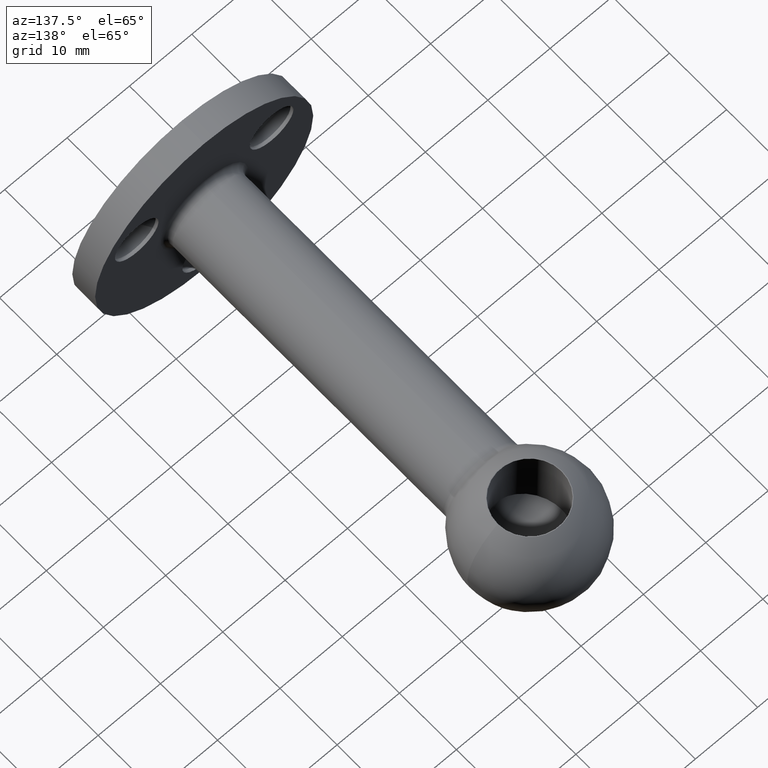
[diagram: clean part render]
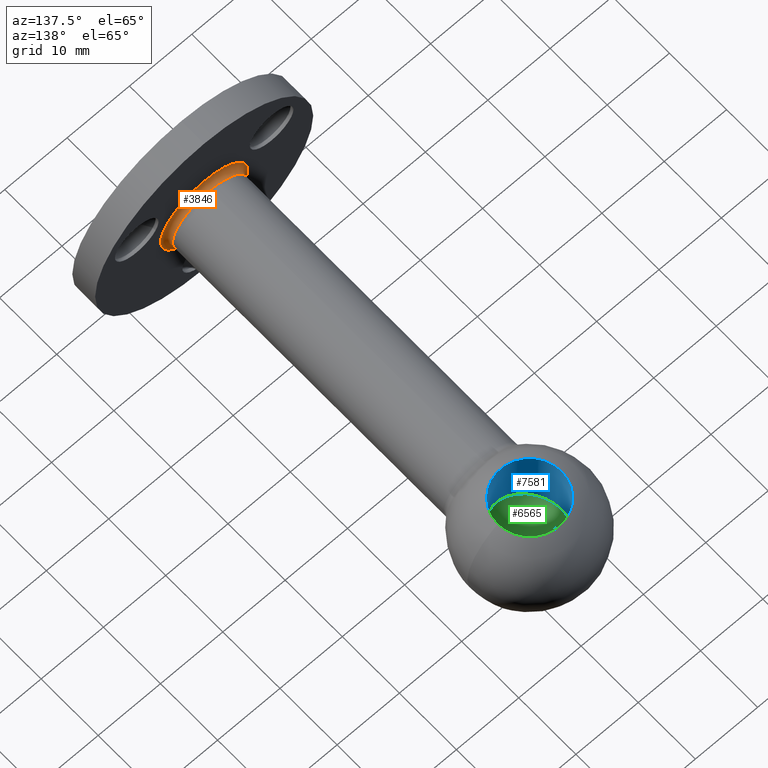
[diagram: same view with three faces highlighted in distinct colors, each labeled with its STEP entity id]
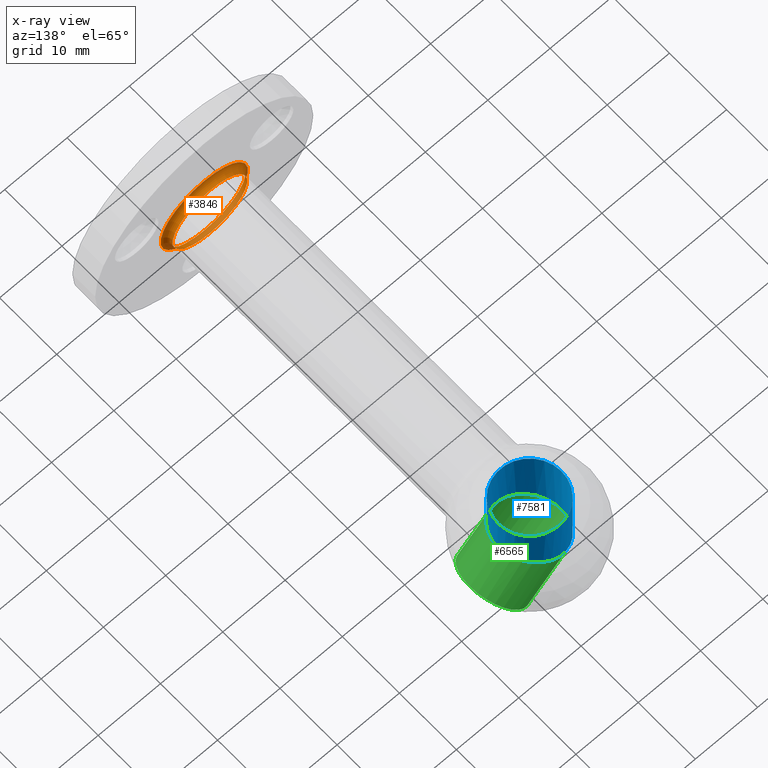
[diagram: x-ray of the same camera — body ghosted, the three highlighted faces saturated]
A machine part, auxiliary view with three faces highlighted in distinct colors.
The next image is the same camera in x-ray (body ghosted, the three faces saturated) — at least one of them is partly hidden behind the body in this view.
Their STEP definitions:

[orange] entity #3846 — the highlighted toroidal blend (fillet) surface has major radius 7 mm and minor (blend) radius 1 mm.
#637 = EDGE_LOOP ( 'NONE', ( #2044 ) ) ;
#654 = DIRECTION ( 'NONE',  ( 0.000000000000000000, 1.000000000000000000, 0.000000000000000000 ) ) ;
#808 = CARTESIAN_POINT ( 'NONE',  ( 0.000000000000000000, 5.000000000000000000, 0.000000000000000000 ) ) ;
#873 = CIRCLE ( 'NONE', #9180, 6.000000000000001776 ) ;
#969 = ORIENTED_EDGE ( 'NONE', *, *, #11612, .F. ) ;
#1600 = DIRECTION ( 'NONE',  ( 0.000000000000000000, 0.000000000000000000, 1.000000000000000000 ) ) ;
#2044 = ORIENTED_EDGE ( 'NONE', *, *, #10140, .F. ) ;
#2308 = CARTESIAN_POINT ( 'NONE',  ( 0.000000000000000000, 4.000000000000000000, 0.000000000000000000 ) ) ;
#2475 = CARTESIAN_POINT ( 'NONE',  ( 0.000000000000000000, 5.000000000000000000, 0.000000000000000000 ) ) ;
#2739 = DIRECTION ( 'NONE',  ( 0.000000000000000000, 0.000000000000000000, 1.000000000000000000 ) ) ;
#3308 = EDGE_LOOP ( 'NONE', ( #969 ) ) ;
#3311 = CARTESIAN_POINT ( 'NONE',  ( 0.000000000000000000, 4.000000000000000000, 7.000000000000001776 ) ) ;
#3846 = ADVANCED_FACE ( 'NONE', ( #12342, #11732 ), #9480, .F. ) ;
#4138 = DIRECTION ( 'NONE',  ( -0.000000000000000000, -1.000000000000000000, -0.000000000000000000 ) ) ;
#4294 = VERTEX_POINT ( 'NONE', #8225 ) ;
#4432 = DIRECTION ( 'NONE',  ( 0.000000000000000000, 0.000000000000000000, 1.000000000000000000 ) ) ;
#4889 = AXIS2_PLACEMENT_3D ( 'NONE', #2475, #10170, #4432 ) ;
#7516 = CIRCLE ( 'NONE', #7665, 7.000000000000001776 ) ;
#7665 = AXIS2_PLACEMENT_3D ( 'NONE', #2308, #4138, #1600 ) ;
#8225 = CARTESIAN_POINT ( 'NONE',  ( 0.000000000000000000, 5.000000000000000000, 6.000000000000001776 ) ) ;
#9180 = AXIS2_PLACEMENT_3D ( 'NONE', #808, #654, #2739 ) ;
#9480 = TOROIDAL_SURFACE ( 'NONE', #4889, 7.000000000000001776, 1.000000000000000000 ) ;
#10140 = EDGE_CURVE ( 'NONE', #4294, #4294, #873, .T. ) ;
#10170 = DIRECTION ( 'NONE',  ( 0.000000000000000000, 1.000000000000000000, 0.000000000000000000 ) ) ;
#11612 = EDGE_CURVE ( 'NONE', #12109, #12109, #7516, .T. ) ;
#11732 = FACE_OUTER_BOUND ( 'NONE', #637, .T. ) ;
#12109 = VERTEX_POINT ( 'NONE', #3311 ) ;
#12342 = FACE_OUTER_BOUND ( 'NONE', #3308, .T. ) ;

[blue] entity #7581 — the highlighted cylindrical surface (bore or boss wall) has radius 5.1 mm, axis along (-0, -0, 1).
#457 = CARTESIAN_POINT ( 'NONE',  ( -5.099999999999998757, 50.80000000000001847, -2.112489168102790416 ) ) ;
#529 = ORIENTED_EDGE ( 'NONE', *, *, #4503, .F. ) ;
#1021 = AXIS2_PLACEMENT_3D ( 'NONE', #1410, #3413, #8237 ) ;
#1055 = DIRECTION ( 'NONE',  ( -0.000000000000000000, -0.000000000000000000, 1.000000000000000000 ) ) ;
#1410 = CARTESIAN_POINT ( 'NONE',  ( 0.000000000000000000, 61.00000000000000000, 8.528760599265112319 ) ) ;
#1878 = FACE_OUTER_BOUND ( 'NONE', #10537, .T. ) ;
#2768 = VERTEX_POINT ( 'NONE', #4274 ) ;
#3413 = DIRECTION ( 'NONE',  ( 0.000000000000000000, 0.000000000000000000, 1.000000000000000000 ) ) ;
#4098 = AXIS2_PLACEMENT_3D ( 'NONE', #5026, #1055, #8771 ) ;
#4274 = CARTESIAN_POINT ( 'NONE',  ( 5.099999999999997868, 61.00000000000000000, 2.112489168102789971 ) ) ;
#4503 = EDGE_CURVE ( 'NONE', #2768, #2768, #9562, .T. ) ;
#5026 = CARTESIAN_POINT ( 'NONE',  ( 0.000000000000000000, 61.00000000000000000, -14.42497833620556058 ) ) ;
#5178 = CARTESIAN_POINT ( 'NONE',  ( 5.099999999999997868, 61.00000000000000000, 2.112489168102789971 ) ) ;
#6272 = CARTESIAN_POINT ( 'NONE',  ( 5.099999999999997868, 71.19999999999998863, 2.112489168102789971 ) ) ;
#7495 = EDGE_CURVE ( 'NONE', #9539, #9539, #7783, .T. ) ;
#7581 = ADVANCED_FACE ( 'NONE', ( #1878, #12129 ), #11073, .F. ) ;
#7783 = CIRCLE ( 'NONE', #1021, 5.099999999999997868 ) ;
#8062 = CARTESIAN_POINT ( 'NONE',  ( 5.099999999999997868, 50.80000000000001847, 2.112489168102789971 ) ) ;
#8096 = CARTESIAN_POINT ( 'NONE',  ( 5.099999999999997868, 61.00000000000000000, 8.528760599265112319 ) ) ;
#8153 = CARTESIAN_POINT ( 'NONE',  ( -5.099999999999996980, 71.19999999999998863, -2.112489168102789527 ) ) ;
#8237 = DIRECTION ( 'NONE',  ( 1.000000000000000000, 0.000000000000000000, 0.000000000000000000 ) ) ;
#8771 = DIRECTION ( 'NONE',  ( 1.000000000000000000, 0.000000000000000000, 0.000000000000000000 ) ) ;
#9017 = ORIENTED_EDGE ( 'NONE', *, *, #7495, .T. ) ;
#9539 = VERTEX_POINT ( 'NONE', #8096 ) ;
#9562 =( BOUNDED_CURVE ( )  B_SPLINE_CURVE ( 3, ( #11931, #6272, #8153, #11979, #457, #8062, #5178 ),
 .UNSPECIFIED., .T., .F. ) 
 B_SPLINE_CURVE_WITH_KNOTS ( ( 4, 3, 4 ),
 ( 0.000000000000000000, 3.141592653589793116, 6.283185307179586232 ),
 .UNSPECIFIED. ) 
 CURVE ( )  GEOMETRIC_REPRESENTATION_ITEM ( )  RATIONAL_B_SPLINE_CURVE ( ( 1.000000000000000000, 0.3333333333333333703, 0.3333333333333333703, 1.000000000000000000, 0.3333333333333333703, 0.3333333333333333703, 1.000000000000000000 ) ) 
 REPRESENTATION_ITEM ( '' )  );
#10232 = EDGE_LOOP ( 'NONE', ( #529 ) ) ;
#10537 = EDGE_LOOP ( 'NONE', ( #9017 ) ) ;
#11073 = CYLINDRICAL_SURFACE ( 'NONE', #4098, 5.099999999999997868 ) ;
#11931 = CARTESIAN_POINT ( 'NONE',  ( 5.099999999999997868, 61.00000000000000000, 2.112489168102789971 ) ) ;
#11979 = CARTESIAN_POINT ( 'NONE',  ( -5.099999999999997868, 61.00000000000000000, -2.112489168102789971 ) ) ;
#12129 = FACE_OUTER_BOUND ( 'NONE', #10232, .T. ) ;

[green] entity #6565 — the highlighted cylindrical surface (bore or boss wall) has radius 5.1 mm, axis along (0.7071, 0, -0.7071).
#457 = CARTESIAN_POINT ( 'NONE',  ( -5.099999999999998757, 50.80000000000001847, -2.112489168102790416 ) ) ;
#506 = DIRECTION ( 'NONE',  ( 0.7071067811865475727, -0.000000000000000000, -0.7071067811865475727 ) ) ;
#817 = DIRECTION ( 'NONE',  ( 0.7071067811865489050, 0.000000000000000000, -0.7071067811865462405 ) ) ;
#1703 = EDGE_CURVE ( 'NONE', #11055, #11055, #3963, .T. ) ;
#2768 = VERTEX_POINT ( 'NONE', #4274 ) ;
#2805 = FACE_OUTER_BOUND ( 'NONE', #11022, .T. ) ;
#3708 = CARTESIAN_POINT ( 'NONE',  ( 0.000000000000000000, 61.00000000000000000, 0.000000000000000000 ) ) ;
#3963 = CIRCLE ( 'NONE', #5853, 5.099999999999997868 ) ;
#4041 = CYLINDRICAL_SURFACE ( 'NONE', #7170, 5.099999999999997868 ) ;
#4274 = CARTESIAN_POINT ( 'NONE',  ( 5.099999999999997868, 61.00000000000000000, 2.112489168102789971 ) ) ;
#4427 = DIRECTION ( 'NONE',  ( -0.7071067811865475727, 0.000000000000000000, -0.7071067811865475727 ) ) ;
#4503 = EDGE_CURVE ( 'NONE', #2768, #2768, #9562, .T. ) ;
#5178 = CARTESIAN_POINT ( 'NONE',  ( 5.099999999999997868, 61.00000000000000000, 2.112489168102789971 ) ) ;
#5362 = CARTESIAN_POINT ( 'NONE',  ( 6.011640840825294596, 61.00000000000000000, -6.011640840825271503 ) ) ;
#5375 = ORIENTED_EDGE ( 'NONE', *, *, #4503, .T. ) ;
#5853 = AXIS2_PLACEMENT_3D ( 'NONE', #5362, #506, #4427 ) ;
#6272 = CARTESIAN_POINT ( 'NONE',  ( 5.099999999999997868, 71.19999999999998863, 2.112489168102789971 ) ) ;
#6565 = ADVANCED_FACE ( 'NONE', ( #2805, #10180 ), #4041, .F. ) ;
#7170 = AXIS2_PLACEMENT_3D ( 'NONE', #3708, #817, #10483 ) ;
#8062 = CARTESIAN_POINT ( 'NONE',  ( 5.099999999999997868, 50.80000000000001847, 2.112489168102789971 ) ) ;
#8153 = CARTESIAN_POINT ( 'NONE',  ( -5.099999999999996980, 71.19999999999998863, -2.112489168102789527 ) ) ;
#9562 =( BOUNDED_CURVE ( )  B_SPLINE_CURVE ( 3, ( #11931, #6272, #8153, #11979, #457, #8062, #5178 ),
 .UNSPECIFIED., .T., .F. ) 
 B_SPLINE_CURVE_WITH_KNOTS ( ( 4, 3, 4 ),
 ( 0.000000000000000000, 3.141592653589793116, 6.283185307179586232 ),
 .UNSPECIFIED. ) 
 CURVE ( )  GEOMETRIC_REPRESENTATION_ITEM ( )  RATIONAL_B_SPLINE_CURVE ( ( 1.000000000000000000, 0.3333333333333333703, 0.3333333333333333703, 1.000000000000000000, 0.3333333333333333703, 0.3333333333333333703, 1.000000000000000000 ) ) 
 REPRESENTATION_ITEM ( '' )  );
#10062 = EDGE_LOOP ( 'NONE', ( #5375 ) ) ;
#10180 = FACE_OUTER_BOUND ( 'NONE', #10062, .T. ) ;
#10483 = DIRECTION ( 'NONE',  ( -0.7071067811865462405, 0.000000000000000000, -0.7071067811865489050 ) ) ;
#10993 = CARTESIAN_POINT ( 'NONE',  ( 2.405396256773903119, 61.00000000000000000, -9.617885424876662981 ) ) ;
#11022 = EDGE_LOOP ( 'NONE', ( #11056 ) ) ;
#11055 = VERTEX_POINT ( 'NONE', #10993 ) ;
#11056 = ORIENTED_EDGE ( 'NONE', *, *, #1703, .T. ) ;
#11931 = CARTESIAN_POINT ( 'NONE',  ( 5.099999999999997868, 61.00000000000000000, 2.112489168102789971 ) ) ;
#11979 = CARTESIAN_POINT ( 'NONE',  ( -5.099999999999997868, 61.00000000000000000, -2.112489168102789971 ) ) ;